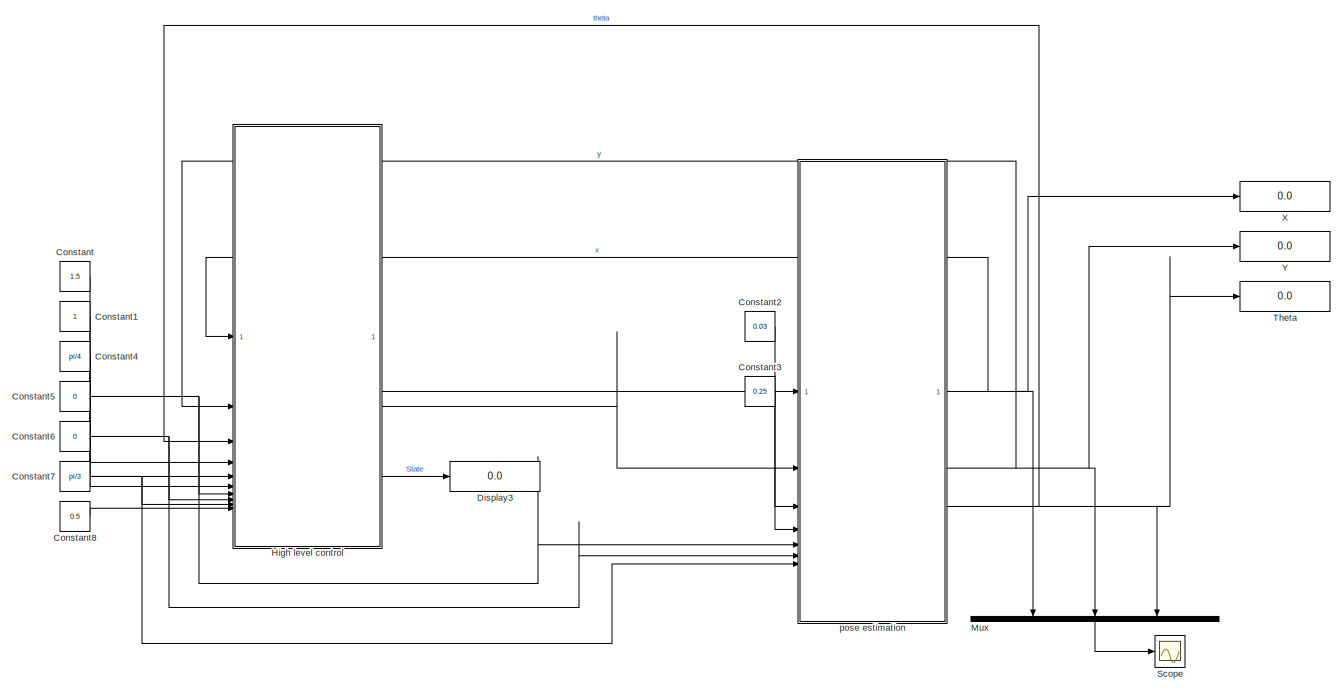
[diagram: root canvas - part 1/2, left side, full height]
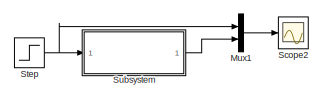
[diagram: root canvas - part 2/2, top right region]
MODEL slx_a5f5af8b4a59
KIND model
CONFIG AbsTol = auto
CONFIG EnableMultiTasking = off
CONFIG FixedStep = auto
CONFIG MaxStep = auto
CONFIG MinStep = auto
CONFIG RelTol = 1e-3
CONFIG SampleTimeConstraint = Unconstrained
CONFIG SolverName = VariableStepAuto
CONFIG StartTime = 0.0
CONFIG StopTime = 200
BLOCK [Constant] Constant
  Value = 1.5
BLOCK [Constant] Constant1
BLOCK [Constant] Constant2
  Value = 0.03
BLOCK [Constant] Constant3
  Value = 0.25
BLOCK [Constant] Constant4
  Value = pi/4
BLOCK [Constant] Constant5
  Value = 0
BLOCK [Constant] Constant6
  Value = 0
BLOCK [Constant] Constant7
  Value = pi/3
BLOCK [Constant] Constant8
  Value = 0.5
BLOCK [Display] Display3
  Decimation = 1
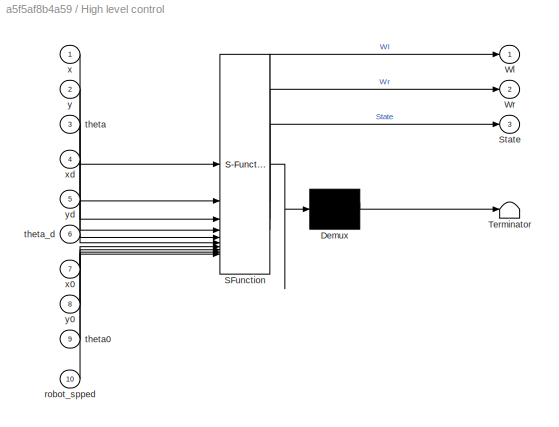
BLOCK [SubSystem] High level control
  ErrorFcn = Stateflow.Translate.translate
  PermitHierarchicalResolution = ExplicitOnly
  SFBlockType = MATLAB Function
  TreatAsAtomicUnit = on
BLOCK [Demux] High level control/ Demux 
  Outputs = 1
BLOCK [S-Function] High level control/ SFunction 
  EnableBusSupport = on
  FunctionName = sf_sfun
  PortCounts = [10 4]
  SFcnIsStateOwnerBlock = off
  SFunctionDeploymentMode = off
  Tag = Stateflow S-Function 2
BLOCK [Terminator] High level control/ Terminator 
BLOCK [Outport] High level control/State
  Port = 3
BLOCK [Outport] High level control/Wl
BLOCK [Outport] High level control/Wr
  Port = 2
BLOCK [Inport] High level control/robot_spped
  Port = 10
BLOCK [Inport] High level control/theta
  Port = 3
BLOCK [Inport] High level control/theta0
  Port = 9
BLOCK [Inport] High level control/theta_d
  Port = 6
BLOCK [Inport] High level control/x
BLOCK [Inport] High level control/x0
  Port = 7
BLOCK [Inport] High level control/xd
  Port = 4
BLOCK [Inport] High level control/y
  Port = 2
BLOCK [Inport] High level control/y0
  Port = 8
BLOCK [Inport] High level control/yd
  Port = 5
BLOCK [Mux] Mux
  DisplayOption = bar
  Inputs = 3
  NameLocation = left
BLOCK [Mux] Mux1
  DisplayOption = bar
  Inputs = 2
BLOCK [Scope] Scope
  Floating = off
  NumInputPorts = 1
  ScopeSpecificationString = Simulink.scopes.TimeScopeBlockCfg('CurrentConfiguration', extmgr.ConfigurationSet(extmgr.Configuration('Core','General UI',true),extmgr.Configuration('Core','Source UI',true),extmgr.Configuration('Sources','WiredSimulink',true),extmgr.Configuration('Visuals','Time Domain',true,'SerializedDisplays',{struct('MinYLimReal','-0.18632','MaxYLimReal','1.67686','YLabelReal','','MinYLimMag','0.00000','MaxY...<+1449ch>
BLOCK [Scope] Scope2
  Floating = off
  NumInputPorts = 1
  ScopeSpecificationString = Simulink.scopes.TimeScopeBlockCfg('CurrentConfiguration', extmgr.ConfigurationSet(extmgr.Configuration('Core','General UI',true),extmgr.Configuration('Core','Source UI',true),extmgr.Configuration('Sources','WiredSimulink',true,'DataLoggingVariableName','ScopeData1'),extmgr.Configuration('Visuals','Time Domain',true,'SerializedDisplays',{struct('MinYLimReal','-0.12559','MaxYLimReal','1.13028','YLab...<+1493ch>
BLOCK [Step] Step
  SampleTime = 1
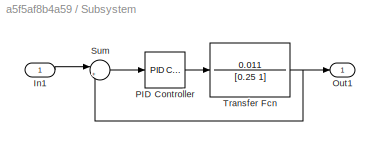
BLOCK [SubSystem] Subsystem
BLOCK [Inport] Subsystem/In1
BLOCK [Outport] Subsystem/Out1
BLOCK [Reference] Subsystem/PID Controller  REF=slpidlib/PID Controller
  LibrarySourceBlock = simulink/Continuous/PID Controller
  SourceBlock = slpidlib/PID Controller
  SourceType = PID 1dof
BLOCK [Sum] Subsystem/Sum
  Inputs = |+-
BLOCK [TransferFcn] Subsystem/Transfer Fcn
  Denominator = [0.25 1]
  Numerator = 0.011
BLOCK [Display] Theta
  Decimation = 1
BLOCK [Display] X
  Decimation = 1
BLOCK [Display] Y
  Decimation = 1
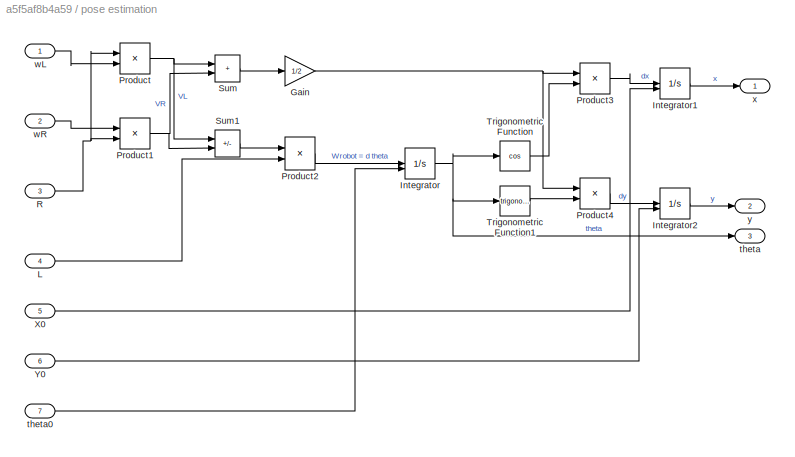
BLOCK [SubSystem] pose estimation
BLOCK [Gain] pose estimation/Gain
  Gain = 1/2
BLOCK [Integrator] pose estimation/Integrator
  InitialConditionSource = external
BLOCK [Integrator] pose estimation/Integrator1
  InitialConditionSource = external
BLOCK [Integrator] pose estimation/Integrator2
  InitialConditionSource = external
BLOCK [Inport] pose estimation/L
  Port = 4
BLOCK [Product] pose estimation/Product
BLOCK [Product] pose estimation/Product1
BLOCK [Product] pose estimation/Product2
  Inputs = */
BLOCK [Product] pose estimation/Product3
BLOCK [Product] pose estimation/Product4
BLOCK [Inport] pose estimation/R
  Port = 3
BLOCK [Sum] pose estimation/Sum
  IconShape = rectangular
BLOCK [Sum] pose estimation/Sum1
  IconShape = rectangular
  Inputs = +-
BLOCK [Trigonometry] pose estimation/Trigonometric Function
  Operator = cos
BLOCK [Trigonometry] pose estimation/Trigonometric Function1
BLOCK [Inport] pose estimation/X0
  Port = 5
BLOCK [Inport] pose estimation/Y0
  Port = 6
BLOCK [Outport] pose estimation/theta
  Port = 3
BLOCK [Inport] pose estimation/theta0
  Port = 7
BLOCK [Inport] pose estimation/wL
BLOCK [Inport] pose estimation/wR
  Port = 2
BLOCK [Outport] pose estimation/x
BLOCK [Outport] pose estimation/y
  Port = 2
LINE Constant1:1 -> High level control:5
LINE Constant2:1 -> pose estimation:3
LINE Constant3:1 -> pose estimation:4
LINE Constant4:1 -> High level control:6
NET Constant5:1 -> High level control:7, pose estimation:5
NET Constant6:1 -> High level control:8, pose estimation:6
NET Constant7:1 -> High level control:9, pose estimation:7
LINE Constant8:1 -> High level control:10
LINE Constant:1 -> High level control:4
LINE High level control:1 -> pose estimation:1
LINE High level control:2 -> pose estimation:2
LINE High level control:3 -> Display3:1
LINE Mux1:1 -> Scope2:1
LINE Mux:1 -> Scope:1
NET Step:1 -> Mux1:1, Subsystem:1
LINE Subsystem/In1:1 -> Subsystem/Sum:1
LINE Subsystem/PID Controller:1 -> Subsystem/Transfer Fcn:1
LINE Subsystem/Sum:1 -> Subsystem/PID Controller:1
NET Subsystem/Transfer Fcn:1 -> Subsystem/Out1:1, Subsystem/Sum:2
LINE Subsystem:1 -> Mux1:2
NET pose estimation/Gain:1 -> pose estimation/Product3:1, pose estimation/Product4:1
LINE pose estimation/Integrator1:1 -> pose estimation/x:1
LINE pose estimation/Integrator2:1 -> pose estimation/y:1
NET pose estimation/Integrator:1 -> pose estimation/Trigonometric Function1:1, pose estimation/Trigonometric Function:1, pose estimation/theta:1
LINE pose estimation/L:1 -> pose estimation/Product2:2
NET pose estimation/Product1:1 -> pose estimation/Sum1:2, pose estimation/Sum:2
LINE pose estimation/Product2:1 -> pose estimation/Integrator:1
LINE pose estimation/Product3:1 -> pose estimation/Integrator1:1
LINE pose estimation/Product4:1 -> pose estimation/Integrator2:1
NET pose estimation/Product:1 -> pose estimation/Sum1:1, pose estimation/Sum:1
NET pose estimation/R:1 -> pose estimation/Product1:2, pose estimation/Product:1
LINE pose estimation/Sum1:1 -> pose estimation/Product2:1
LINE pose estimation/Sum:1 -> pose estimation/Gain:1
LINE pose estimation/Trigonometric Function1:1 -> pose estimation/Product4:2
LINE pose estimation/Trigonometric Function:1 -> pose estimation/Product3:2
LINE pose estimation/X0:1 -> pose estimation/Integrator1:2
LINE pose estimation/Y0:1 -> pose estimation/Integrator2:2
LINE pose estimation/theta0:1 -> pose estimation/Integrator:2
LINE pose estimation/wL:1 -> pose estimation/Product:2
LINE pose estimation/wR:1 -> pose estimation/Product1:1
NET pose estimation:1 -> High level control:1, Mux:1, X:1
NET pose estimation:2 -> High level control:2, Mux:2, Y:1
NET pose estimation:3 -> High level control:3, Mux:3, Theta:1
note: NET lines group one-source signal fan-out (src -> all destinations, sorted); 1:1 wires keep LINE
CHART High level control states=1 transitions=1
  STATE_LABEL 'eML_blk_kernel()'
  STATE_LABEL 'SCRIPT:\nfunction [Wl, Wr, State] = fcn(x, y, theta, xd, yd, theta_d, x0, y0, theta0, robot_spped)\n% State 0 : Initial condition\n\n% State 4 : Stop the robot\nWl = 0;\nWr = 0;\nState = 0;\n\nTD = sqrt((xd-x0).^2+ (yd-y0).^2);\nTa = sqrt((x-x0).^2 + (y-y0).^2); % distance parcourue\n\ntheta1 = sign(yd - y0).*acos((xd-x0)/TD)-theta;\ntheta2 = theta_d - theta;\n\nC1 = theta1 > 0.01 || theta1 < -0.01;\nC2 = Ta <= T...<+855ch>'
CHART  states=0 transitions=0
